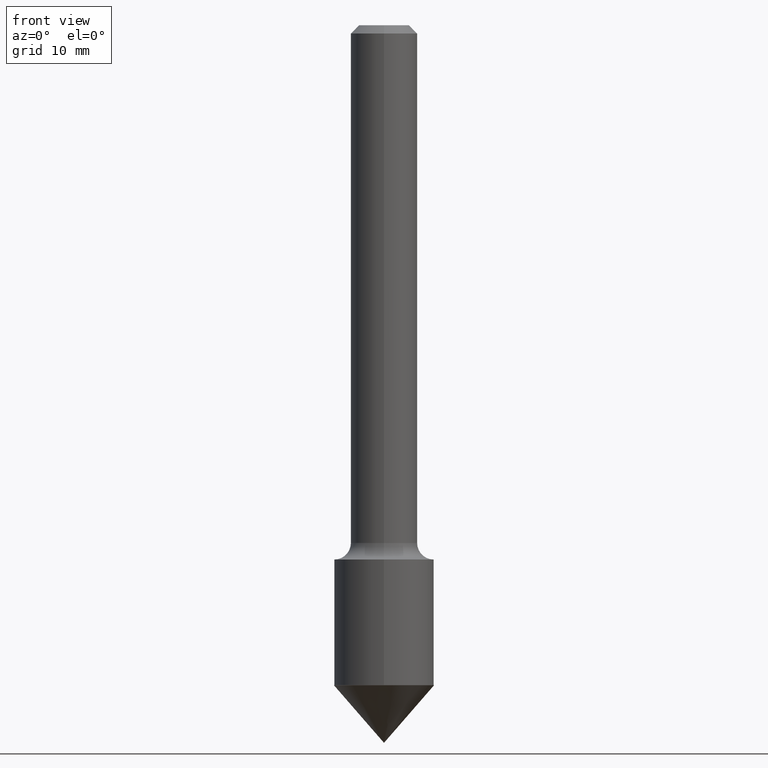
[diagram: clean part render]
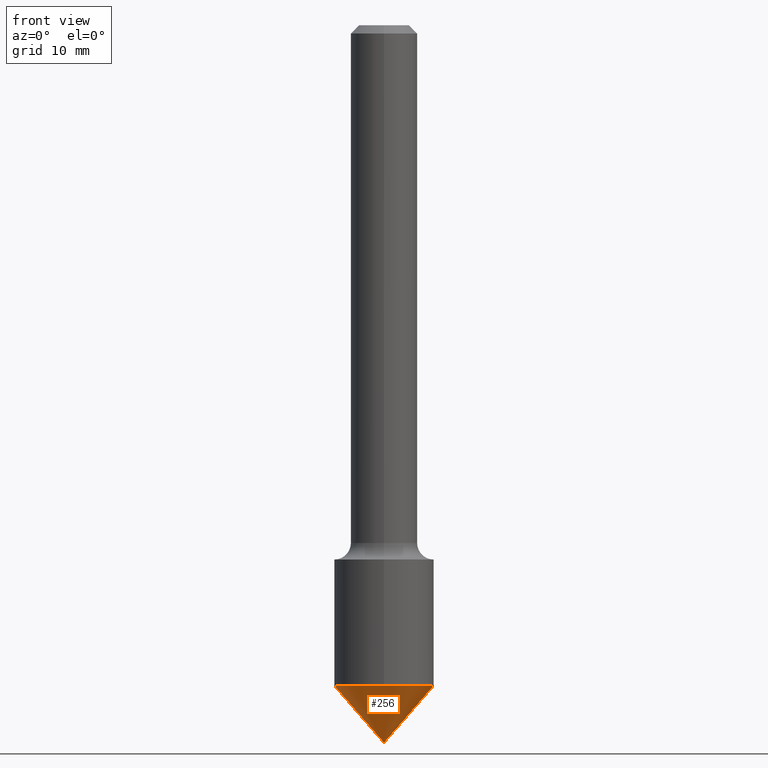
[diagram: same view with one face highlighted and labeled with its STEP entity id]
A machine part, front view. The second image highlights one B-rep face of the part: STEP entity #256.
In plain terms, the highlighted conical surface has half-angle 41 deg.
Its self-contained STEP definition (entity closure, byte-faithful):
#15 = CARTESIAN_POINT ( 'NONE',  ( 6.529663577209082975E-29, -9.461750806698696215E-15, -2.689999999999999947 ) ) ;
#58 = DIRECTION ( 'NONE',  ( -2.445468806185136597E-29, 3.491481338843145583E-15, 1.000000000000000000 ) ) ;
#66 = DIRECTION ( 'NONE',  ( 1.000000000000000000, -6.982962677686264344E-15, 0.000000000000000000 ) ) ;
#96 = DIRECTION ( 'NONE',  ( 1.000000000000000000, -6.982962677686264344E-15, 0.000000000000000000 ) ) ;
#104 = DIRECTION ( 'NONE',  ( 0.6560590289905054995, -1.946181298205834642E-15, 0.7547095802227735684 ) ) ;
#168 = ORIENTED_EDGE ( 'NONE', *, *, #374, .F. ) ;
#176 = FACE_OUTER_BOUND ( 'NONE', #215, .T. ) ;
#195 = DIRECTION ( 'NONE',  ( -2.445468806185136597E-29, 3.491481338843145583E-15, 1.000000000000000000 ) ) ;
#210 = VERTEX_POINT ( 'NONE', #342 ) ;
#215 = EDGE_LOOP ( 'NONE', ( #364, #471, #168 ) ) ;
#234 = VERTEX_POINT ( 'NONE', #461 ) ;
#250 = EDGE_CURVE ( 'NONE', #254, #210, #366, .T. ) ;
#254 = VERTEX_POINT ( 'NONE', #15 ) ;
#256 = ADVANCED_FACE ( 'NONE', ( #176 ), #296, .T. ) ;
#265 = AXIS2_PLACEMENT_3D ( 'NONE', #292, #195, #66 ) ;
#267 = CARTESIAN_POINT ( 'NONE',  ( -0.1874999999999996947, -7.306725329449085143E-15, -2.474305923646060279 ) ) ;
#282 = CARTESIAN_POINT ( 'NONE',  ( 6.050837953235543055E-29, -8.638992958999271414E-15, -2.474305923646060279 ) ) ;
#291 = AXIS2_PLACEMENT_3D ( 'NONE', #282, #58, #96 ) ;
#292 = CARTESIAN_POINT ( 'NONE',  ( 6.050837953235543055E-29, -8.638992958999271414E-15, -2.474305923646060279 ) ) ;
#296 = CONICAL_SURFACE ( 'NONE', #291, 0.1874999999999996947, 0.7155849933176727795 ) ;
#338 = LINE ( 'NONE', #267, #368 ) ;
#342 = CARTESIAN_POINT ( 'NONE',  ( 0.1874999999999996947, -9.925336333581432004E-15, -2.474305923646060279 ) ) ;
#364 = ORIENTED_EDGE ( 'NONE', *, *, #440, .F. ) ;
#365 = CARTESIAN_POINT ( 'NONE',  ( 0.1874999999999996947, -9.948298461065443267E-15, -2.474305923646060279 ) ) ;
#366 = LINE ( 'NONE', #365, #408 ) ;
#368 = VECTOR ( 'NONE', #417, 39.37007874015748143 ) ;
#374 = EDGE_CURVE ( 'NONE', #234, #210, #477, .T. ) ;
#408 = VECTOR ( 'NONE', #104, 39.37007874015748143 ) ;
#417 = DIRECTION ( 'NONE',  ( -0.6560590289905054995, 7.296634188384245269E-15, 0.7547095802227735684 ) ) ;
#440 = EDGE_CURVE ( 'NONE', #254, #234, #338, .T. ) ;
#461 = CARTESIAN_POINT ( 'NONE',  ( -0.1874999999999996947, -7.329687456933097983E-15, -2.474305923646060279 ) ) ;
#471 = ORIENTED_EDGE ( 'NONE', *, *, #250, .T. ) ;
#477 = CIRCLE ( 'NONE', #265, 0.1874999999999996947 ) ;